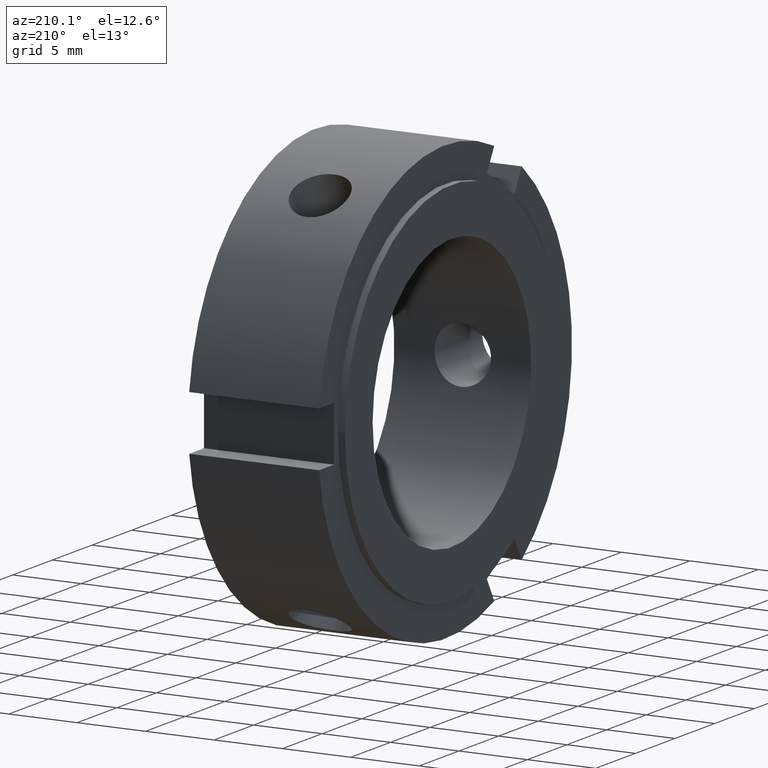
[diagram: clean part render]
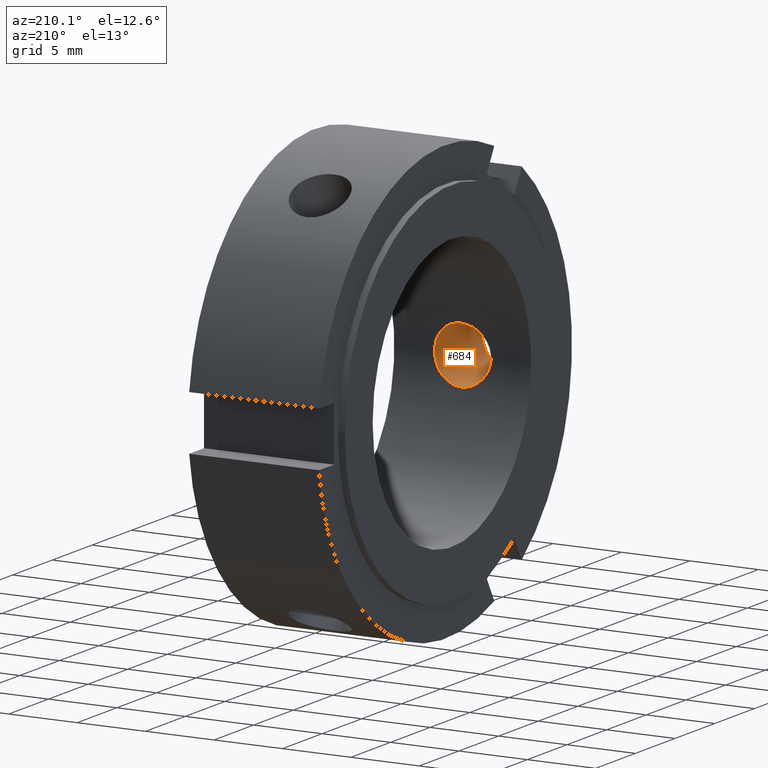
[diagram: same view with one face highlighted and labeled with its STEP entity id]
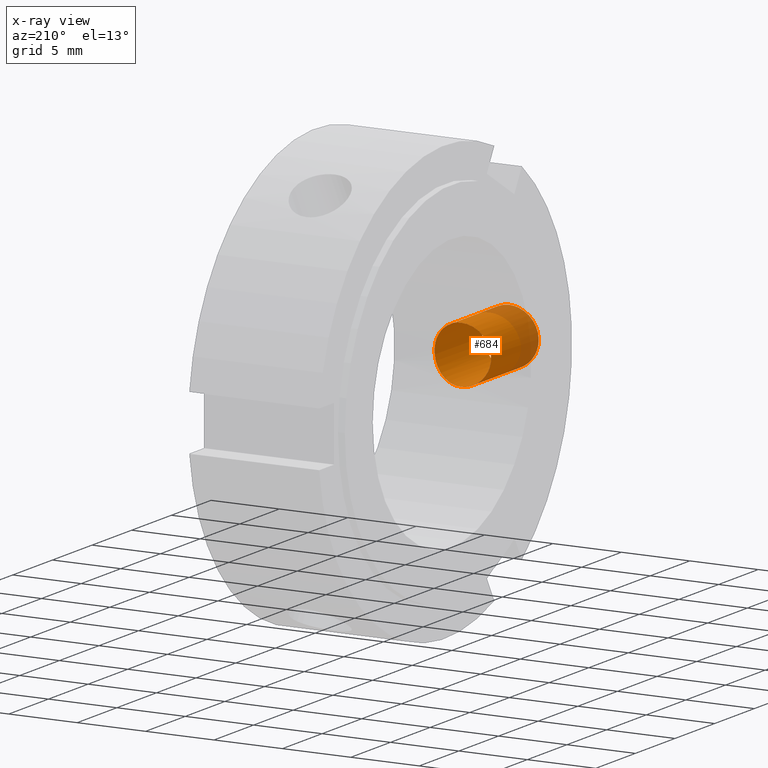
[diagram: x-ray of the same camera — body ghosted, the highlighted face saturated]
A machine part, auxiliary view. The second image highlights one B-rep face of the part: STEP entity #684.
The next image is the same camera in x-ray: the body ghosted, the highlighted face saturated — about 21% of this face is hidden behind the body in this view.
In plain terms, the highlighted cylindrical surface (bore or boss wall) has radius 2.067 mm, axis along (0, 1, 0).
Its self-contained STEP definition (entity closure, byte-faithful):
#593=CARTESIAN_POINT('',(4.999999999999996,-15.865922948256113,2.067000000000000));
#594=VERTEX_POINT('',#593);
#595=CARTESIAN_POINT('',(4.999999999999996,-15.865922948256113,2.067000000000000));
#596=CARTESIAN_POINT('',(5.259850414627227,-15.865922948256113,2.067000000000000));
#597=CARTESIAN_POINT('',(5.536820394372653,-15.872965455047579,2.015009300680839));
#598=CARTESIAN_POINT('',(6.045999172821704,-15.898332311683532,1.803974624096363));
#599=CARTESIAN_POINT('',(6.278233054693932,-15.916282668499395,1.644946378731251));
#600=CARTESIAN_POINT('',(6.644944629392624,-15.949922185118467,1.278234804032559));
#601=CARTESIAN_POINT('',(6.803974245744746,-15.967806957822718,1.046000162625035));
#602=CARTESIAN_POINT('',(7.015009926134721,-15.993023508625830,0.536818808367556));
#603=CARTESIAN_POINT('',(7.066999999999996,-15.999999999999998,0.259847935489789));
#604=CARTESIAN_POINT('',(7.066999999999997,-16.0,-0.259847935489789));
#605=CARTESIAN_POINT('',(7.015009926134721,-15.993023508625830,-0.536818808367555));
#606=CARTESIAN_POINT('',(6.803974245744746,-15.967806957822718,-1.046000162625034));
#607=CARTESIAN_POINT('',(6.644944629392626,-15.949922185118467,-1.278234804032559));
#608=CARTESIAN_POINT('',(6.278233054693933,-15.916282668499395,-1.644946378731251));
#609=CARTESIAN_POINT('',(6.045999172821702,-15.898332311683532,-1.803974624096363));
#610=CARTESIAN_POINT('',(5.536820394372652,-15.872965455047579,-2.015009300680839));
#611=CARTESIAN_POINT('',(5.259850414627227,-15.865922948256113,-2.067000000000000));
#612=CARTESIAN_POINT('',(4.740149585372764,-15.865922948256113,-2.067000000000000));
#613=CARTESIAN_POINT('',(4.463179605627338,-15.872965455047579,-2.015009300680839));
#614=CARTESIAN_POINT('',(3.954000827178289,-15.898332311683532,-1.803974624096363));
#615=CARTESIAN_POINT('',(3.721766945306059,-15.916282668499395,-1.644946378731251));
#616=CARTESIAN_POINT('',(3.355055370607367,-15.949922185118467,-1.278234804032560));
#617=CARTESIAN_POINT('',(3.196025754255246,-15.967806957822718,-1.046000162625036));
#618=CARTESIAN_POINT('',(2.984990073865271,-15.993023508625830,-0.536818808367557));
#619=CARTESIAN_POINT('',(2.932999999999995,-15.999999999999998,-0.259847935489790));
#620=CARTESIAN_POINT('',(2.932999999999995,-15.999999999999998,0.259847935489789));
#621=CARTESIAN_POINT('',(2.984990073865271,-15.993023508625830,0.536818808367556));
#622=CARTESIAN_POINT('',(3.196025754255246,-15.967806957822718,1.046000162625034));
#623=CARTESIAN_POINT('',(3.355055370607366,-15.949922185118467,1.278234804032558));
#624=CARTESIAN_POINT('',(3.721766945306058,-15.916282668499395,1.644946378731251));
#625=CARTESIAN_POINT('',(3.954000827178287,-15.898332311683532,1.803974624096362));
#626=CARTESIAN_POINT('',(4.463179605627338,-15.872965455047579,2.015009300680839));
#627=CARTESIAN_POINT('',(4.740149585372764,-15.865922948256113,2.067000000000000));
#628=CARTESIAN_POINT('',(4.999999999999996,-15.865922948256113,2.067000000000000));
#629=B_SPLINE_CURVE_WITH_KNOTS('',3,(#595,#596,#597,#598,#599,#600,#601,#602,#603,#604,#605,#606,#607,#608,#609,#610,#611,#612,#613,#614,#615,#616,#617,#618,#619,#620,#621,#622,#623,#624,#625,#626,#627,#628),.UNSPECIFIED.,.T.,.U.,(4,2,2,2,2,2,2,2,2,2,2,2,2,2,2,2,4),(0.0,0.077955124388169,0.155910248776339,0.233864629423276,0.311819010070212,0.389773390717149,0.467727771364086,0.545682895752255,0.623638020140425,0.701593144528594,0.779548268916764,0.857502649563700,0.935457030210637,1.013411410857574,1.091365791504511,1.169320915892680,1.247276040280850),.UNSPECIFIED.);
#630=EDGE_CURVE('',#594,#594,#629,.T.);
#635=CARTESIAN_POINT('',(4.999999999999996,-46.259963810236613,0.0));
#636=DIRECTION('',(0.0,1.0,0.0));
#637=DIRECTION('',(-1.0,0.0,0.0));
#638=AXIS2_PLACEMENT_3D('',#635,#636,#637);
#639=CYLINDRICAL_SURFACE('',#638,2.067000000000000);
#640=ORIENTED_EDGE('',*,*,#630,.F.);
#641=EDGE_LOOP('',(#640));
#642=FACE_OUTER_BOUND('',#641,.T.);
#643=CARTESIAN_POINT('',(4.999999999999996,-9.784043693688208,2.067000000000000));
#644=VERTEX_POINT('',#643);
#645=CARTESIAN_POINT('',(4.999999999999996,-9.784043693688208,2.067000000000000));
#646=CARTESIAN_POINT('',(4.739645386300825,-9.784043693688208,2.067000000000000));
#647=CARTESIAN_POINT('',(4.462467912642954,-9.795514028790363,2.014813978959760));
#648=CARTESIAN_POINT('',(3.953434911616775,-9.836587434430253,1.803640176560761));
#649=CARTESIAN_POINT('',(3.721512285395669,-9.865558642658836,1.644691718820861));
#650=CARTESIAN_POINT('',(3.355320017436101,-9.919661936996905,1.278499450861293));
#651=CARTESIAN_POINT('',(3.196362371635106,-9.948360638449238,1.046571852273957));
#652=CARTESIAN_POINT('',(2.985181898030672,-9.988806867606431,0.537521527384524));
#653=CARTESIAN_POINT('',(2.932999999999995,-10.0,0.260337925795085));
#654=CARTESIAN_POINT('',(2.932999999999995,-10.0,-0.260337925795085));
#655=CARTESIAN_POINT('',(2.985181898030672,-9.988806867606431,-0.537521527384524));
#656=CARTESIAN_POINT('',(3.196362371635107,-9.948360638449238,-1.046571852273957));
#657=CARTESIAN_POINT('',(3.355320017436101,-9.919661936996905,-1.278499450861293));
#658=CARTESIAN_POINT('',(3.721512285395669,-9.865558642658836,-1.644691718820861));
#659=CARTESIAN_POINT('',(3.953434911616775,-9.836587434430253,-1.803640176560762));
#660=CARTESIAN_POINT('',(4.462467912642955,-9.795514028790361,-2.014813978959761));
#661=CARTESIAN_POINT('',(4.739645386300825,-9.784043693688208,-2.067000000000000));
#662=CARTESIAN_POINT('',(5.260354613699166,-9.784043693688208,-2.067000000000000));
#663=CARTESIAN_POINT('',(5.537532087357037,-9.795514028790361,-2.014813978959760));
#664=CARTESIAN_POINT('',(6.046565088383217,-9.836587434430253,-1.803640176560761));
#665=CARTESIAN_POINT('',(6.278487714604322,-9.865558642658836,-1.644691718820861));
#666=CARTESIAN_POINT('',(6.644679982563890,-9.919661936996903,-1.278499450861293));
#667=CARTESIAN_POINT('',(6.803637628364884,-9.948360638449238,-1.046571852273957));
#668=CARTESIAN_POINT('',(7.014818101969319,-9.988806867606431,-0.537521527384524));
#669=CARTESIAN_POINT('',(7.066999999999996,-10.0,-0.260337925795085));
#670=CARTESIAN_POINT('',(7.066999999999996,-10.0,0.260337925795084));
#671=CARTESIAN_POINT('',(7.014818101969320,-9.988806867606431,0.537521527384524));
#672=CARTESIAN_POINT('',(6.803637628364885,-9.948360638449238,1.046571852273957));
#673=CARTESIAN_POINT('',(6.644679982563890,-9.919661936996905,1.278499450861293));
#674=CARTESIAN_POINT('',(6.278487714604322,-9.865558642658836,1.644691718820861));
#675=CARTESIAN_POINT('',(6.046565088383215,-9.836587434430253,1.803640176560762));
#676=CARTESIAN_POINT('',(5.537532087357034,-9.795514028790361,2.014813978959761));
#677=CARTESIAN_POINT('',(5.260354613699164,-9.784043693688208,2.067000000000000));
#678=CARTESIAN_POINT('',(4.999999999999996,-9.784043693688208,2.067000000000000));
#679=B_SPLINE_CURVE_WITH_KNOTS('',3,(#645,#646,#647,#648,#649,#650,#651,#652,#653,#654,#655,#656,#657,#658,#659,#660,#661,#662,#663,#664,#665,#666,#667,#668,#669,#670,#671,#672,#673,#674,#675,#676,#677,#678),.UNSPECIFIED.,.T.,.U.,(4,2,2,2,2,2,2,2,2,2,2,2,2,2,2,2,4),(0.0,0.078106384109751,0.156212768219502,0.234314145958027,0.312415523696553,0.390516901435078,0.468618279173603,0.546724663283354,0.624831047393105,0.702937431502856,0.781043815612607,0.859145193351132,0.937246571089658,1.015347948828183,1.093449326566709,1.171555710676460,1.249662094786210),.UNSPECIFIED.);
#680=EDGE_CURVE('',#644,#644,#679,.T.);
#681=ORIENTED_EDGE('',*,*,#680,.F.);
#682=EDGE_LOOP('',(#681));
#683=FACE_BOUND('',#682,.T.);
#684=ADVANCED_FACE('',(#642,#683),#639,.F.);